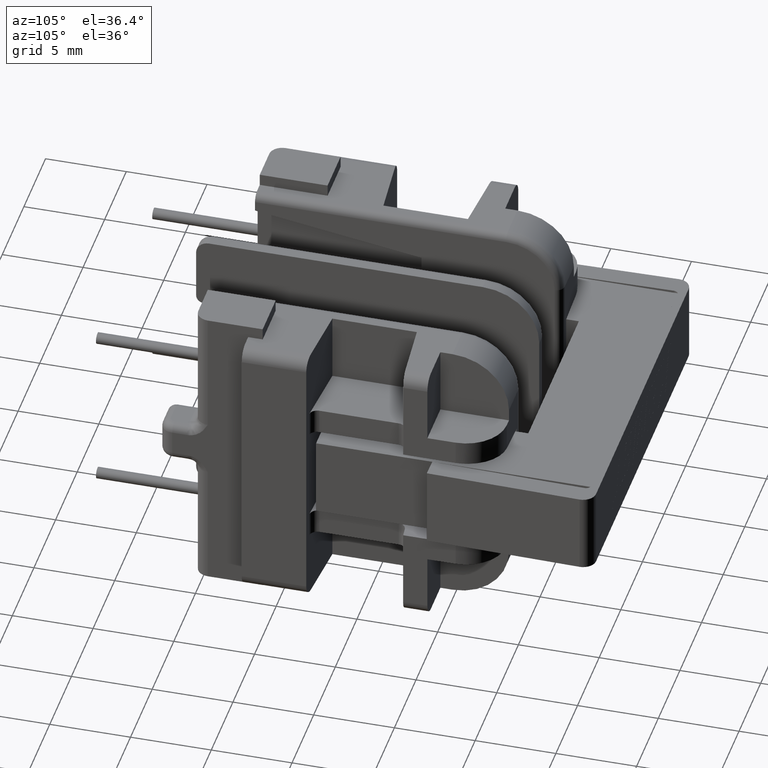
[diagram: clean part render]
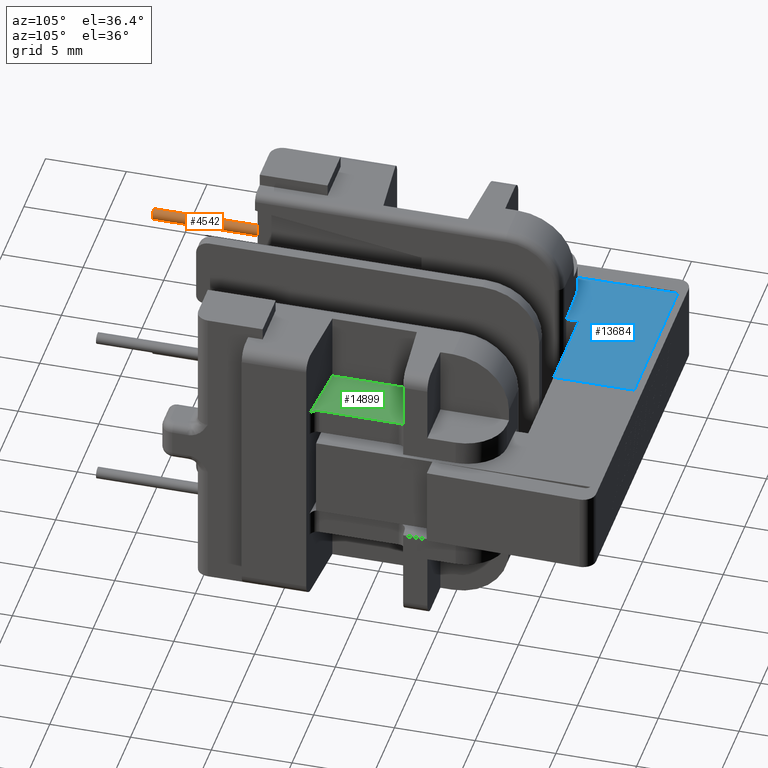
[diagram: same view with three faces highlighted in distinct colors, each labeled with its STEP entity id]
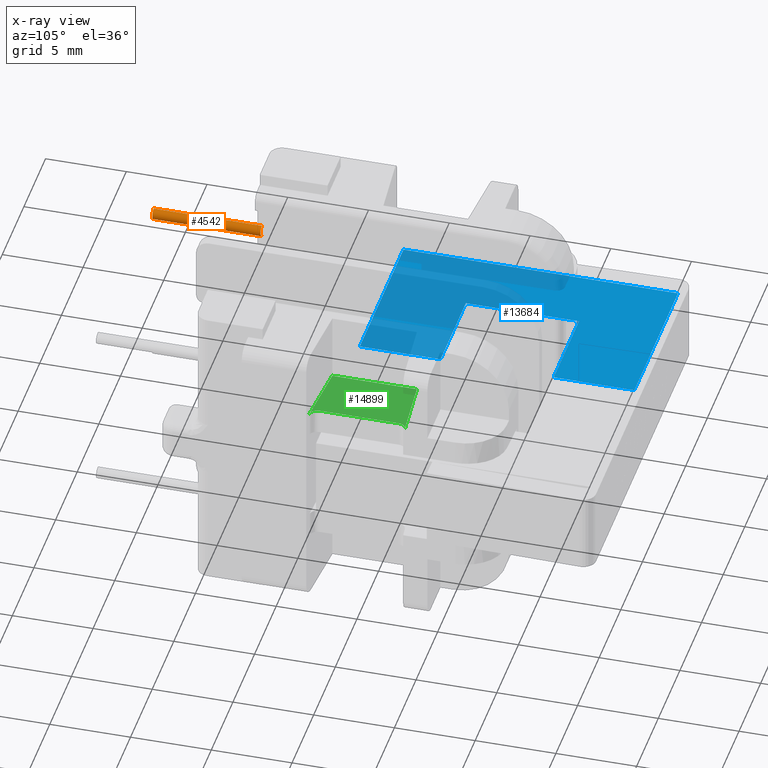
[diagram: x-ray of the same camera — body ghosted, the three highlighted faces saturated]
A machine part, auxiliary view with three faces highlighted in distinct colors.
The next image is the same camera in x-ray (body ghosted, the three faces saturated) — at least one of them is partly hidden behind the body in this view.
Their STEP definitions:

[orange] entity #4542 — the highlighted cylindrical surface (edge-blend (fillet) strip) has radius 0.35 mm, axis along (-0, -1, -0).
#275 = DIRECTION ( 'NONE',  ( 0.0000000000000000000, 0.0000000000000000000, 1.000000000000000000 ) ) ;
#686 = CYLINDRICAL_SURFACE ( 'NONE', #21454, 0.3499999999999996447 ) ;
#1243 = CARTESIAN_POINT ( 'NONE',  ( -6.499999999999997335, -17.00000000000000000, 4.650000000000000355 ) ) ;
#1479 = ORIENTED_EDGE ( 'NONE', *, *, #18088, .T. ) ;
#1895 = CARTESIAN_POINT ( 'NONE',  ( -6.499999999999997335, -10.30000000000000426, 4.650000000000000355 ) ) ;
#3126 = CARTESIAN_POINT ( 'NONE',  ( -6.499999999999997335, 8.751999999999998892, 5.349999999999999645 ) ) ;
#3869 = DIRECTION ( 'NONE',  ( 0.0000000000000000000, 1.000000000000000000, 0.0000000000000000000 ) ) ;
#4542 = ADVANCED_FACE ( 'NONE', ( #20713 ), #686, .T. ) ;
#4692 = VECTOR ( 'NONE', #10080, 1000.000000000000000 ) ;
#4754 = DIRECTION ( 'NONE',  ( -0.0000000000000000000, -1.000000000000000000, -0.0000000000000000000 ) ) ;
#4906 = CARTESIAN_POINT ( 'NONE',  ( -6.499999999999997335, -17.00000000000000000, 5.349999999999999645 ) ) ;
#5435 = CARTESIAN_POINT ( 'NONE',  ( -6.499999999999997335, -10.30000000000000426, 5.000000000000000000 ) ) ;
#6833 = ORIENTED_EDGE ( 'NONE', *, *, #22861, .F. ) ;
#6853 = ORIENTED_EDGE ( 'NONE', *, *, #16990, .T. ) ;
#7532 = CARTESIAN_POINT ( 'NONE',  ( -6.499999999999997335, -17.00000000000000000, 5.000000000000000000 ) ) ;
#8282 = CARTESIAN_POINT ( 'NONE',  ( -6.499999999999997335, 8.751999999999998892, 4.650000000000000355 ) ) ;
#8386 = CIRCLE ( 'NONE', #9836, 0.3499999999999996447 ) ;
#8681 = VERTEX_POINT ( 'NONE', #1243 ) ;
#8776 = DIRECTION ( 'NONE',  ( 0.0000000000000000000, 0.0000000000000000000, -1.000000000000000000 ) ) ;
#9836 = AXIS2_PLACEMENT_3D ( 'NONE', #7532, #3869, #275 ) ;
#10068 = LINE ( 'NONE', #8282, #4692 ) ;
#10080 = DIRECTION ( 'NONE',  ( -0.0000000000000000000, -1.000000000000000000, -0.0000000000000000000 ) ) ;
#11169 = AXIS2_PLACEMENT_3D ( 'NONE', #5435, #14384, #12562 ) ;
#11537 = CARTESIAN_POINT ( 'NONE',  ( -6.499999999999997335, -10.30000000000000426, 5.349999999999999645 ) ) ;
#12199 = EDGE_CURVE ( 'NONE', #16492, #8681, #8386, .T. ) ;
#12562 = DIRECTION ( 'NONE',  ( -1.000000000000000000, 0.0000000000000000000, 0.0000000000000000000 ) ) ;
#12831 = LINE ( 'NONE', #3126, #22185 ) ;
#13776 = CARTESIAN_POINT ( 'NONE',  ( -6.499999999999997335, 8.751999999999998892, 5.000000000000000000 ) ) ;
#14384 = DIRECTION ( 'NONE',  ( 3.097720492815725193E-16, -1.000000000000000000, -0.0000000000000000000 ) ) ;
#16492 = VERTEX_POINT ( 'NONE', #4906 ) ;
#16990 = EDGE_CURVE ( 'NONE', #19663, #20250, #22191, .T. ) ;
#18088 = EDGE_CURVE ( 'NONE', #20250, #16492, #12831, .T. ) ;
#18432 = ORIENTED_EDGE ( 'NONE', *, *, #12199, .T. ) ;
#18938 = EDGE_LOOP ( 'NONE', ( #6853, #1479, #18432, #6833 ) ) ;
#19663 = VERTEX_POINT ( 'NONE', #1895 ) ;
#20250 = VERTEX_POINT ( 'NONE', #11537 ) ;
#20713 = FACE_OUTER_BOUND ( 'NONE', #18938, .T. ) ;
#21454 = AXIS2_PLACEMENT_3D ( 'NONE', #13776, #4754, #8776 ) ;
#22185 = VECTOR ( 'NONE', #22767, 1000.000000000000000 ) ;
#22191 = CIRCLE ( 'NONE', #11169, 0.3499999999999996447 ) ;
#22767 = DIRECTION ( 'NONE',  ( -0.0000000000000000000, -1.000000000000000000, -0.0000000000000000000 ) ) ;
#22861 = EDGE_CURVE ( 'NONE', #19663, #8681, #10068, .T. ) ;

[blue] entity #13684 — the highlighted planar face has unit normal (0, 0, 1).
#50 = VERTEX_POINT ( 'NONE', #12165 ) ;
#538 = VECTOR ( 'NONE', #15717, 1000.000000000000000 ) ;
#742 = EDGE_CURVE ( 'NONE', #22693, #12183, #22136, .T. ) ;
#776 = CARTESIAN_POINT ( 'NONE',  ( -5.850000000000001421, 2.500000000000001332, 2.500000000000000000 ) ) ;
#1096 = EDGE_CURVE ( 'NONE', #12183, #5733, #10506, .T. ) ;
#1303 = CARTESIAN_POINT ( 'NONE',  ( 5.849999999999997868, 2.500000000000000000, 2.500000000000000000 ) ) ;
#1382 = DIRECTION ( 'NONE',  ( 0.0000000000000000000, -1.000000000000000000, 0.0000000000000000000 ) ) ;
#1403 = EDGE_LOOP ( 'NONE', ( #2587, #7538, #7914, #23384, #2056, #4554, #15161, #13164 ) ) ;
#2056 = ORIENTED_EDGE ( 'NONE', *, *, #1096, .F. ) ;
#2378 = CARTESIAN_POINT ( 'NONE',  ( -3.676887031429929725E-15, -6.720500654632832749, 2.500000000000000000 ) ) ;
#2587 = ORIENTED_EDGE ( 'NONE', *, *, #12719, .F. ) ;
#2690 = CARTESIAN_POINT ( 'NONE',  ( -10.10000000000000142, -2.499999999999998668, 2.500000000000000000 ) ) ;
#2742 = VERTEX_POINT ( 'NONE', #23009 ) ;
#3466 = VECTOR ( 'NONE', #18846, 1000.000000000000000 ) ;
#4086 = AXIS2_PLACEMENT_3D ( 'NONE', #9916, #20817, #4619 ) ;
#4328 = DIRECTION ( 'NONE',  ( 3.694962673250500497E-19, -1.000000000000000000, 0.0000000000000000000 ) ) ;
#4554 = ORIENTED_EDGE ( 'NONE', *, *, #742, .F. ) ;
#4560 = VECTOR ( 'NONE', #1382, 1000.000000000000000 ) ;
#4619 = DIRECTION ( 'NONE',  ( -1.000000000000000000, 0.0000000000000000000, 0.0000000000000000000 ) ) ;
#4679 = FACE_OUTER_BOUND ( 'NONE', #1403, .T. ) ;
#4936 = EDGE_CURVE ( 'NONE', #2742, #8043, #7940, .T. ) ;
#5150 = DIRECTION ( 'NONE',  ( -1.000000000000000000, -8.587739980083203670E-17, 0.0000000000000000000 ) ) ;
#5317 = LINE ( 'NONE', #6806, #538 ) ;
#5567 = CARTESIAN_POINT ( 'NONE',  ( -3.676887031429929725E-15, -6.720500654632832749, 2.500000000000000000 ) ) ;
#5733 = VERTEX_POINT ( 'NONE', #6269 ) ;
#5772 = DIRECTION ( 'NONE',  ( -1.000000000000000000, -1.112002228190261198E-16, 0.0000000000000000000 ) ) ;
#5844 = VERTEX_POINT ( 'NONE', #17388 ) ;
#6269 = CARTESIAN_POINT ( 'NONE',  ( -3.678446490668059763E-15, -2.500000000000000444, 2.500000000000000000 ) ) ;
#6806 = CARTESIAN_POINT ( 'NONE',  ( 10.09999999999999787, -2.500000000000000444, 2.500000000000000000 ) ) ;
#7538 = ORIENTED_EDGE ( 'NONE', *, *, #14391, .T. ) ;
#7914 = ORIENTED_EDGE ( 'NONE', *, *, #4936, .T. ) ;
#7940 = LINE ( 'NONE', #21085, #4560 ) ;
#8043 = VERTEX_POINT ( 'NONE', #2690 ) ;
#8272 = VECTOR ( 'NONE', #17614, 1000.000000000000000 ) ;
#9180 = VERTEX_POINT ( 'NONE', #16672 ) ;
#9189 = CARTESIAN_POINT ( 'NONE',  ( -3.680293972004684658E-15, 2.500000000000000444, 2.500000000000000000 ) ) ;
#9365 = VECTOR ( 'NONE', #5150, 1000.000000000000000 ) ;
#9916 = CARTESIAN_POINT ( 'NONE',  ( 0.0000000000000000000, 6.000000000000000000, 2.500000000000000000 ) ) ;
#10506 = LINE ( 'NONE', #2378, #19557 ) ;
#11273 = DIRECTION ( 'NONE',  ( 3.694962673250500497E-19, -1.000000000000000000, 0.0000000000000000000 ) ) ;
#11293 = EDGE_CURVE ( 'NONE', #50, #22693, #14462, .T. ) ;
#11609 = LINE ( 'NONE', #5567, #13867 ) ;
#12019 = EDGE_CURVE ( 'NONE', #8043, #5733, #5317, .T. ) ;
#12165 = CARTESIAN_POINT ( 'NONE',  ( -5.850000000000001421, 9.499999999999998224, 2.500000000000000000 ) ) ;
#12183 = VERTEX_POINT ( 'NONE', #9189 ) ;
#12719 = EDGE_CURVE ( 'NONE', #5844, #9180, #11609, .T. ) ;
#13164 = ORIENTED_EDGE ( 'NONE', *, *, #19444, .F. ) ;
#13684 = ADVANCED_FACE ( 'NONE', ( #4679 ), #17105, .T. ) ;
#13867 = VECTOR ( 'NONE', #11273, 1000.000000000000000 ) ;
#14391 = EDGE_CURVE ( 'NONE', #5844, #2742, #22435, .T. ) ;
#14462 = LINE ( 'NONE', #776, #3466 ) ;
#15161 = ORIENTED_EDGE ( 'NONE', *, *, #11293, .F. ) ;
#15717 = DIRECTION ( 'NONE',  ( 1.000000000000000000, -8.587739980083203670E-17, 0.0000000000000000000 ) ) ;
#15993 = CARTESIAN_POINT ( 'NONE',  ( 10.09999999999999787, 14.50000000000000000, 2.500000000000000000 ) ) ;
#16672 = CARTESIAN_POINT ( 'NONE',  ( -4.336808689942017736E-15, 9.500000000000000000, 2.500000000000000000 ) ) ;
#16946 = VECTOR ( 'NONE', #5772, 1000.000000000000000 ) ;
#17105 = PLANE ( 'NONE',  #4086 ) ;
#17388 = CARTESIAN_POINT ( 'NONE',  ( -3.684727927212585038E-15, 14.50000000000000000, 2.500000000000000000 ) ) ;
#17614 = DIRECTION ( 'NONE',  ( 1.000000000000000000, -1.112002228190261198E-16, 0.0000000000000000000 ) ) ;
#18846 = DIRECTION ( 'NONE',  ( 0.0000000000000000000, -1.000000000000000000, 0.0000000000000000000 ) ) ;
#19444 = EDGE_CURVE ( 'NONE', #9180, #50, #22046, .T. ) ;
#19557 = VECTOR ( 'NONE', #4328, 1000.000000000000000 ) ;
#20817 = DIRECTION ( 'NONE',  ( 0.0000000000000000000, 0.0000000000000000000, 1.000000000000000000 ) ) ;
#21085 = CARTESIAN_POINT ( 'NONE',  ( -10.10000000000000142, -2.499999999999998668, 2.500000000000000000 ) ) ;
#21886 = CARTESIAN_POINT ( 'NONE',  ( 5.849999999999997868, 9.500000000000000000, 2.500000000000000000 ) ) ;
#22046 = LINE ( 'NONE', #21886, #16946 ) ;
#22136 = LINE ( 'NONE', #1303, #8272 ) ;
#22202 = CARTESIAN_POINT ( 'NONE',  ( -5.850000000000001421, 2.500000000000001332, 2.500000000000000000 ) ) ;
#22435 = LINE ( 'NONE', #15993, #9365 ) ;
#22693 = VERTEX_POINT ( 'NONE', #22202 ) ;
#23009 = CARTESIAN_POINT ( 'NONE',  ( -10.10000000000000142, 14.49999999999999822, 2.500000000000000000 ) ) ;
#23384 = ORIENTED_EDGE ( 'NONE', *, *, #12019, .T. ) ;

[green] entity #14899 — the highlighted planar face has unit normal (-0, 0, 1).
#516 = AXIS2_PLACEMENT_3D ( 'NONE', #21018, #12189, #12278 ) ;
#797 = VERTEX_POINT ( 'NONE', #1850 ) ;
#1282 = CARTESIAN_POINT ( 'NONE',  ( 9.958477260073134829, 2.954873105006097678, 4.500000000000000000 ) ) ;
#1436 = DIRECTION ( 'NONE',  ( 1.000000000000000000, 8.673617379884027583E-16, 0.0000000000000000000 ) ) ;
#1522 = DIRECTION ( 'NONE',  ( 0.0000000000000000000, -0.0000000000000000000, -1.000000000000000000 ) ) ;
#1727 = CARTESIAN_POINT ( 'NONE',  ( 5.899999999999996803, 2.616666666666669361, 4.500000000000000000 ) ) ;
#1850 = CARTESIAN_POINT ( 'NONE',  ( 9.500000000000008882, -2.456600225883652122, 4.500000000000000000 ) ) ;
#2886 = VECTOR ( 'NONE', #18692, 1000.000000000000227 ) ;
#4221 = CARTESIAN_POINT ( 'NONE',  ( 5.899999999999996803, -2.616666666666669361, 4.500000000000000000 ) ) ;
#4272 = FACE_OUTER_BOUND ( 'NONE', #23090, .T. ) ;
#4309 = EDGE_CURVE ( 'NONE', #18273, #18657, #22074, .T. ) ;
#5974 = ORIENTED_EDGE ( 'NONE', *, *, #12758, .T. ) ;
#6095 = PLANE ( 'NONE',  #516 ) ;
#7663 = VECTOR ( 'NONE', #16241, 1000.000000000000000 ) ;
#7673 = DIRECTION ( 'NONE',  ( -0.9965457582448795648, -0.08304547985373998686, 0.0000000000000000000 ) ) ;
#7837 = AXIS2_PLACEMENT_3D ( 'NONE', #10655, #1522, #1436 ) ;
#7976 = DIRECTION ( 'NONE',  ( 1.000000000000000000, -8.673617379884027583E-16, 0.0000000000000000000 ) ) ;
#8954 = VERTEX_POINT ( 'NONE', #18104 ) ;
#10655 = CARTESIAN_POINT ( 'NONE',  ( 10.00000000000000533, 2.456600225883657895, 4.500000000000000888 ) ) ;
#10748 = CIRCLE ( 'NONE', #16587, 0.5000000000000004441 ) ;
#10759 = VECTOR ( 'NONE', #7673, 1000.000000000000227 ) ;
#10856 = CARTESIAN_POINT ( 'NONE',  ( 9.500000000000007105, 5.650242178895887880E-15, 4.500000000000000000 ) ) ;
#12075 = ORIENTED_EDGE ( 'NONE', *, *, #19900, .F. ) ;
#12189 = DIRECTION ( 'NONE',  ( -0.0000000000000000000, 0.0000000000000000000, 1.000000000000000000 ) ) ;
#12213 = CIRCLE ( 'NONE', #7837, 0.5000000000000004441 ) ;
#12278 = DIRECTION ( 'NONE',  ( 1.000000000000000000, 0.0000000000000000000, 0.0000000000000000000 ) ) ;
#12758 = EDGE_CURVE ( 'NONE', #15195, #19499, #18650, .T. ) ;
#13002 = ORIENTED_EDGE ( 'NONE', *, *, #21430, .T. ) ;
#13753 = ORIENTED_EDGE ( 'NONE', *, *, #14640, .T. ) ;
#14640 = EDGE_CURVE ( 'NONE', #19499, #18273, #17304, .T. ) ;
#14668 = LINE ( 'NONE', #10856, #22002 ) ;
#14899 = ADVANCED_FACE ( 'NONE', ( #4272 ), #6095, .T. ) ;
#15195 = VERTEX_POINT ( 'NONE', #1282 ) ;
#16227 = DIRECTION ( 'NONE',  ( 5.947623346206194344E-16, -1.000000000000000000, 0.0000000000000000000 ) ) ;
#16241 = DIRECTION ( 'NONE',  ( 0.0000000000000000000, -1.000000000000000000, 0.0000000000000000000 ) ) ;
#16587 = AXIS2_PLACEMENT_3D ( 'NONE', #22489, #22326, #7976 ) ;
#17304 = LINE ( 'NONE', #1727, #7663 ) ;
#18104 = CARTESIAN_POINT ( 'NONE',  ( 9.500000000000005329, 2.456600225883657451, 4.500000000000000000 ) ) ;
#18121 = CARTESIAN_POINT ( 'NONE',  ( 9.958477260073138382, -2.954873105006091905, 4.500000000000000000 ) ) ;
#18273 = VERTEX_POINT ( 'NONE', #20880 ) ;
#18650 = LINE ( 'NONE', #20027, #10759 ) ;
#18657 = VERTEX_POINT ( 'NONE', #18121 ) ;
#18692 = DIRECTION ( 'NONE',  ( 0.9965457582448795648, -0.08304547985373922359, 0.0000000000000000000 ) ) ;
#19450 = ORIENTED_EDGE ( 'NONE', *, *, #19578, .T. ) ;
#19499 = VERTEX_POINT ( 'NONE', #22169 ) ;
#19578 = EDGE_CURVE ( 'NONE', #18657, #797, #10748, .T. ) ;
#19900 = EDGE_CURVE ( 'NONE', #8954, #797, #14668, .T. ) ;
#20027 = CARTESIAN_POINT ( 'NONE',  ( 10.50000000000000355, 3.000000000000003553, 4.500000000000000000 ) ) ;
#20537 = ORIENTED_EDGE ( 'NONE', *, *, #4309, .T. ) ;
#20880 = CARTESIAN_POINT ( 'NONE',  ( 5.899999999999996803, -2.616666666666669361, 4.500000000000000000 ) ) ;
#21018 = CARTESIAN_POINT ( 'NONE',  ( 0.0000000000000000000, 0.0000000000000000000, 4.500000000000000000 ) ) ;
#21430 = EDGE_CURVE ( 'NONE', #8954, #15195, #12213, .T. ) ;
#22002 = VECTOR ( 'NONE', #16227, 1000.000000000000000 ) ;
#22074 = LINE ( 'NONE', #4221, #2886 ) ;
#22169 = CARTESIAN_POINT ( 'NONE',  ( 5.899999999999996803, 2.616666666666669361, 4.500000000000000000 ) ) ;
#22326 = DIRECTION ( 'NONE',  ( 0.0000000000000000000, -0.0000000000000000000, -1.000000000000000000 ) ) ;
#22489 = CARTESIAN_POINT ( 'NONE',  ( 10.00000000000000888, -2.456600225883651678, 4.500000000000000000 ) ) ;
#23090 = EDGE_LOOP ( 'NONE', ( #12075, #13002, #5974, #13753, #20537, #19450 ) ) ;